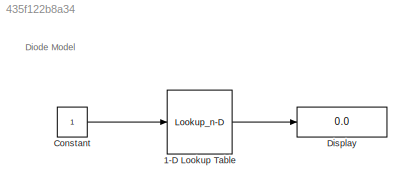
MODEL slx_435f122b8a34
KIND model
CONFIG AbsTol = auto
CONFIG EnableMultiTasking = off
CONFIG FixedStep = auto
CONFIG MaxStep = auto
CONFIG MinStep = auto
CONFIG PreLoadFcn = V=[-25.3,-23.4,-21.2,-19.5,-17.6,-15.4,-13.2,-11.8,-9.2,-7.4,-5,0,0.11,0.24,0.32,0.48,0.66,0.81,1,1.26,1.49,1.67,1.8,2.0,2.27,2.45]\nI=[-25.3,-15,-13.2,-11.6,-9.5,-7.4,-5.6,-4.3,-3.1,-2.1,-1,0,0,0,0,0.5,1.1,2.2,3.2,5.4,7.5,10,15,20,25,30]\n
CONFIG RelTol = 1e-3
CONFIG SampleTimeConstraint = Unconstrained
CONFIG SolverName = VariableStepAuto
CONFIG StartTime = 0.0
CONFIG StopTime = 10.0
BLOCK [Lookup_n-D] 1-D Lookup Table
  BreakpointsForDimension1 = V
  InputPortMap = u0
  InternalRulePriority = Speed
  NumberOfTableDimensions = 1
  Ports = [1, 1]
  RndMeth = Simplest
  Table = I
BLOCK [Constant] Constant
BLOCK [Display] Display
  Decimation = 1
  Ports = [1]
ANNOTATION (root): Diode Model
LINE 1-D Lookup Table:1 -> Display:1
LINE Constant:1 -> 1-D Lookup Table:1
